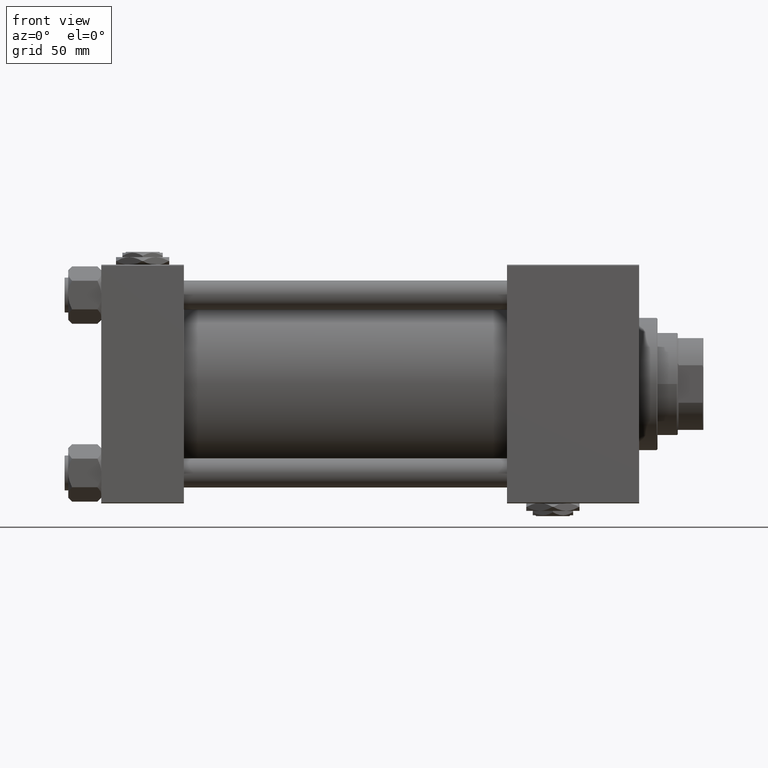
[diagram: clean part render]
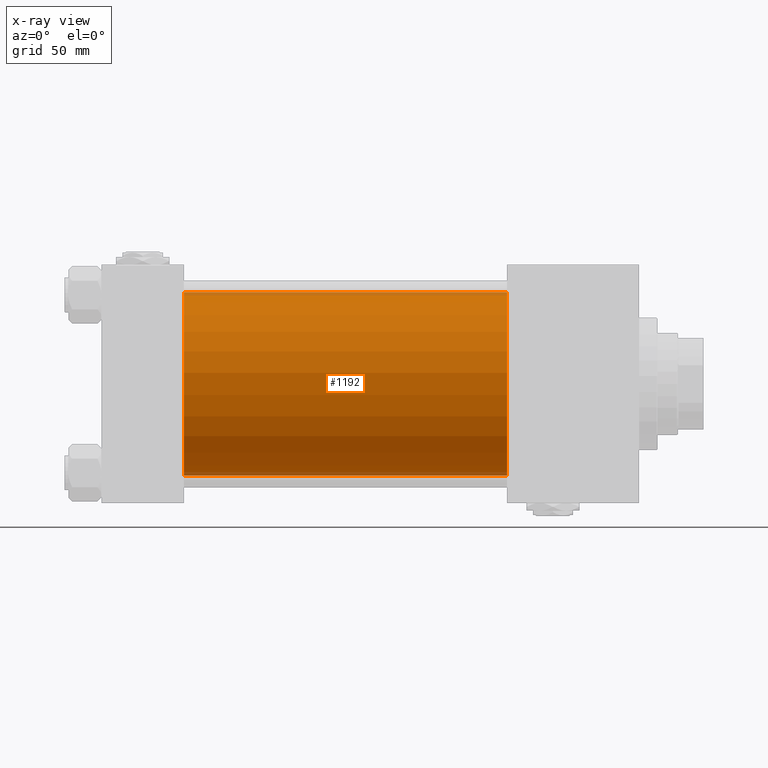
[diagram: x-ray — body ghosted, one internal face saturated and labeled with its STEP entity id]
A machine part, front view, then the same camera in x-ray: the body is ghosted and one INTERNAL B-rep face — a face not visible from any outside direction — is saturated and labeled: STEP entity #1192.
In plain terms, the highlighted cylindrical surface (partial cylindrical patch) has radius 50 mm, axis along (-1, -0, -0).
Its self-contained STEP definition (entity closure, byte-faithful):
#1192 = ADVANCED_FACE ( 'NONE', ( #33453 ), #49780, .F. ) ;
#2746 = DIRECTION ( 'NONE',  ( 0.000000000000000000, 0.000000000000000000, -1.000000000000000000 ) ) ;
#4557 = LINE ( 'NONE', #40975, #21674 ) ;
#5553 = DIRECTION ( 'NONE',  ( -1.000000000000000000, -0.000000000000000000, -0.000000000000000000 ) ) ;
#5575 = CARTESIAN_POINT ( 'NONE',  ( 220.9999999999999716, -2.602085213965210642E-15, 0.000000000000000000 ) ) ;
#5721 = EDGE_CURVE ( 'NONE', #27148, #38834, #19641, .T. ) ;
#5934 = AXIS2_PLACEMENT_3D ( 'NONE', #50962, #14527, #2746 ) ;
#5954 = EDGE_CURVE ( 'NONE', #10754, #16699, #46979, .T. ) ;
#6083 = ORIENTED_EDGE ( 'NONE', *, *, #5721, .F. ) ;
#6694 = DIRECTION ( 'NONE',  ( 0.000000000000000000, 0.000000000000000000, -1.000000000000000000 ) ) ;
#8738 = ORIENTED_EDGE ( 'NONE', *, *, #5954, .T. ) ;
#8825 = DIRECTION ( 'NONE',  ( -1.000000000000000000, -0.000000000000000000, -0.000000000000000000 ) ) ;
#10754 = VERTEX_POINT ( 'NONE', #35140 ) ;
#13841 = LINE ( 'NONE', #22148, #24472 ) ;
#14527 = DIRECTION ( 'NONE',  ( 1.000000000000000000, 0.000000000000000000, 0.000000000000000000 ) ) ;
#14556 = CARTESIAN_POINT ( 'NONE',  ( 220.9999999999999716, 3.521148781771555838E-15, -50.00000000000000000 ) ) ;
#16699 = VERTEX_POINT ( 'NONE', #14556 ) ;
#16758 = EDGE_LOOP ( 'NONE', ( #8738, #34916, #6083, #18214 ) ) ;
#17128 = EDGE_CURVE ( 'NONE', #16699, #38834, #4557, .T. ) ;
#18214 = ORIENTED_EDGE ( 'NONE', *, *, #26602, .F. ) ;
#18386 = CARTESIAN_POINT ( 'NONE',  ( 45.00000000000000000, 3.521148781771555838E-15, -50.00000000000000000 ) ) ;
#19641 = CIRCLE ( 'NONE', #5934, 50.00000000000000000 ) ;
#21113 = AXIS2_PLACEMENT_3D ( 'NONE', #5575, #41722, #37721 ) ;
#21674 = VECTOR ( 'NONE', #8825, 1000.000000000000000 ) ;
#22148 = CARTESIAN_POINT ( 'NONE',  ( 220.9999999999999716, -2.602085213965210642E-15, 50.00000000000000000 ) ) ;
#23866 = CARTESIAN_POINT ( 'NONE',  ( 45.00000000000000000, -2.602085213965210642E-15, 50.00000000000000000 ) ) ;
#24472 = VECTOR ( 'NONE', #5553, 1000.000000000000000 ) ;
#26602 = EDGE_CURVE ( 'NONE', #10754, #27148, #13841, .T. ) ;
#26780 = DIRECTION ( 'NONE',  ( 1.000000000000000000, 0.000000000000000000, 0.000000000000000000 ) ) ;
#27148 = VERTEX_POINT ( 'NONE', #23866 ) ;
#30745 = AXIS2_PLACEMENT_3D ( 'NONE', #42844, #26780, #6694 ) ;
#33453 = FACE_OUTER_BOUND ( 'NONE', #16758, .T. ) ;
#34916 = ORIENTED_EDGE ( 'NONE', *, *, #17128, .T. ) ;
#35140 = CARTESIAN_POINT ( 'NONE',  ( 220.9999999999999716, -2.602085213965210642E-15, 50.00000000000000000 ) ) ;
#37721 = DIRECTION ( 'NONE',  ( 0.000000000000000000, 0.000000000000000000, 1.000000000000000000 ) ) ;
#38834 = VERTEX_POINT ( 'NONE', #18386 ) ;
#40975 = CARTESIAN_POINT ( 'NONE',  ( 220.9999999999999716, 3.521148781771555838E-15, -50.00000000000000000 ) ) ;
#41722 = DIRECTION ( 'NONE',  ( -1.000000000000000000, -0.000000000000000000, -0.000000000000000000 ) ) ;
#42844 = CARTESIAN_POINT ( 'NONE',  ( 220.9999999999999716, -2.602085213965210642E-15, 0.000000000000000000 ) ) ;
#46979 = CIRCLE ( 'NONE', #30745, 50.00000000000000000 ) ;
#49780 = CYLINDRICAL_SURFACE ( 'NONE', #21113, 50.00000000000000000 ) ;
#50962 = CARTESIAN_POINT ( 'NONE',  ( 45.00000000000000000, -2.602085213965210642E-15, 0.000000000000000000 ) ) ;